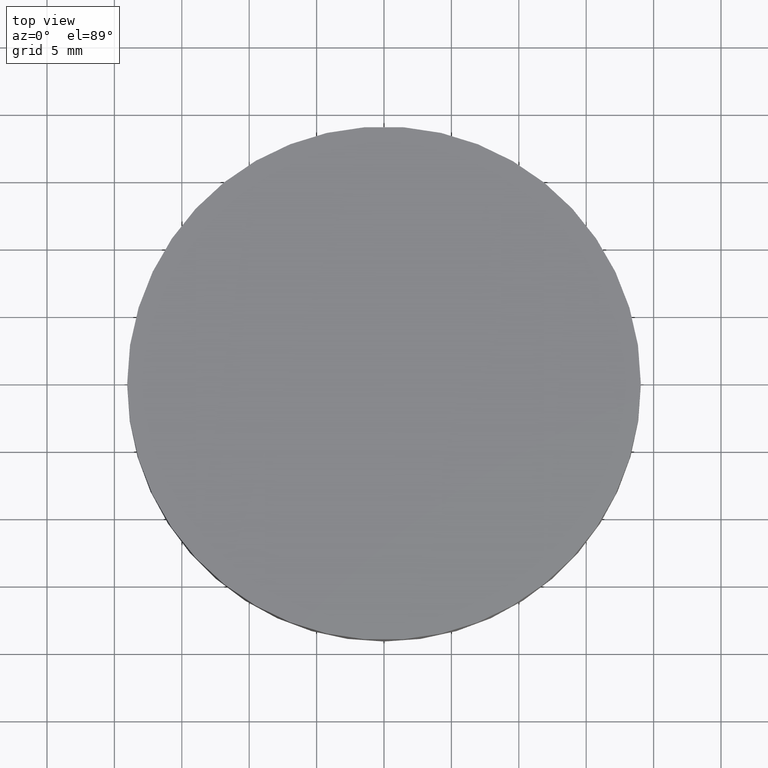
[diagram: clean part render]
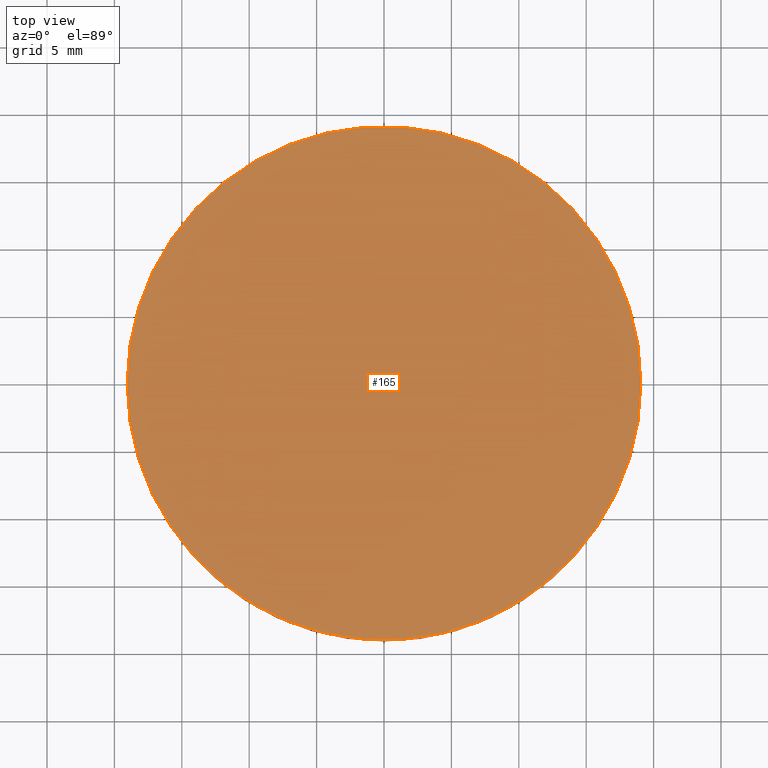
[diagram: same view with one face highlighted and labeled with its STEP entity id]
A machine part, top view. The second image highlights one B-rep face of the part: STEP entity #165.
In plain terms, the highlighted planar face has unit normal (0, 0, 1).
Its self-contained STEP definition (entity closure, byte-faithful):
#3 = CARTESIAN_POINT ( 'NONE',  ( -4.811603628528664400E-015, -8.881784197001250400E-016, 2.399999999999999500 ) ) ;
#8 = AXIS2_PLACEMENT_3D ( 'NONE', #195, #93, #60 ) ;
#21 = PLANE ( 'NONE',  #232 ) ;
#28 = VERTEX_POINT ( 'NONE', #224 ) ;
#33 = AXIS2_PLACEMENT_3D ( 'NONE', #3, #222, #122 ) ;
#60 = DIRECTION ( 'NONE',  ( 1.000000000000000000, 0.0000000000000000000, 2.276539994720219300E-017 ) ) ;
#66 = EDGE_CURVE ( 'NONE', #28, #127, #230, .T. ) ;
#93 = DIRECTION ( 'NONE',  ( 2.331176954593499900E-017, 1.086877198725570000E-033, -1.000000000000000000 ) ) ;
#94 = DIRECTION ( 'NONE',  ( 0.0000000000000000000, 0.0000000000000000000, 1.000000000000000000 ) ) ;
#100 = ORIENTED_EDGE ( 'NONE', *, *, #66, .F. ) ;
#103 = EDGE_CURVE ( 'NONE', #127, #28, #215, .T. ) ;
#122 = DIRECTION ( 'NONE',  ( 1.000000000000000000, 0.0000000000000000000, 2.276539994720219300E-017 ) ) ;
#127 = VERTEX_POINT ( 'NONE', #130 ) ;
#130 = CARTESIAN_POINT ( 'NONE',  ( -19.05000000000000400, 1.444773732675583000E-015, 2.399999999999999000 ) ) ;
#152 = CARTESIAN_POINT ( 'NONE',  ( 0.0000000000000000000, 39.06600000000000300, 2.399999999999999900 ) ) ;
#163 = EDGE_LOOP ( 'NONE', ( #100, #220 ) ) ;
#165 = ADVANCED_FACE ( 'NONE', ( #174 ), #21, .T. ) ;
#174 = FACE_OUTER_BOUND ( 'NONE', #163, .T. ) ;
#195 = CARTESIAN_POINT ( 'NONE',  ( -4.811603628528664400E-015, -8.881784197001250400E-016, 2.399999999999999500 ) ) ;
#215 = CIRCLE ( 'NONE', #8, 19.05000000000000100 ) ;
#220 = ORIENTED_EDGE ( 'NONE', *, *, #103, .F. ) ;
#222 = DIRECTION ( 'NONE',  ( 2.331176954593499900E-017, 1.086877198725570000E-033, -1.000000000000000000 ) ) ;
#224 = CARTESIAN_POINT ( 'NONE',  ( 19.04999999999999700, -8.881784197001250400E-016, 2.399999999999999900 ) ) ;
#229 = DIRECTION ( 'NONE',  ( 1.000000000000000000, 0.0000000000000000000, -0.0000000000000000000 ) ) ;
#230 = CIRCLE ( 'NONE', #33, 19.05000000000000100 ) ;
#232 = AXIS2_PLACEMENT_3D ( 'NONE', #152, #94, #229 ) ;